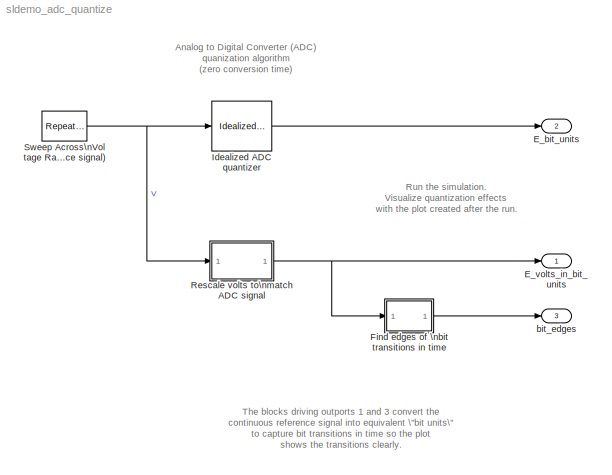
MODEL sldemo_adc_quantize
KIND model
CONFIG InitFcn = \n
CONFIG StopFcn = plot(yout.signals(1).values,double(yout.signals(2).values),'bo-'), grid, hold on, plot([0,4096],[0,4096],'g'), hold off\ntitle(sprintf('Idealized A/D converter quantization algorithm \\n (Zoom in close with the mouse to see behavior details)'))\nzoom on
BLOCK [Outport] E_bit_units
  BusOutputAsStruct = off
  IconDisplay = Port number
  Port = 2
BLOCK [Outport] E_volts_in_bit_units
  BusOutputAsStruct = off
  IconDisplay = Port number
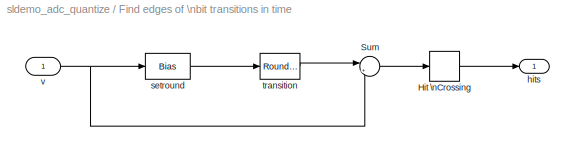
BLOCK [SubSystem] Find edges of \nbit transitions in time
  MinAlgLoopOccurrences = off
  Ports = [1, 1]
  PropExecContextAcrossSSBoundary = on
  RTWSystemCode = Auto
  TreatAsAtomicUnit = off
BLOCK [HitCross] Find edges of \nbit transitions in time/Hit \nCrossing
  HitCrossingDirection = either
  Ports = [1, 1]
BLOCK [Sum] Find edges of \nbit transitions in time/Sum
  IconShape = round
  InputSameDT = off
  Inputs = |+-
  OutDataTypeMode = Inherit via internal rule
  Ports = [2, 1]
  SaturateOnIntegerOverflow = off
BLOCK [Outport] Find edges of \nbit transitions in time/hits
  BusOutputAsStruct = off
  IconDisplay = Port number
BLOCK [Bias] Find edges of \nbit transitions in time/setround
  Bias = 0.5
  SaturateOnIntegerOverflow = off
BLOCK [Rounding] Find edges of \nbit transitions in time/transition
BLOCK [Inport] Find edges of \nbit transitions in time/v
  IconDisplay = Port number
  LatchInput = off
  Port = 1
BLOCK [Reference] Idealized ADC quantizer  REF=simulink_extras/Additional\nDiscrete/Idealized ADC quantizer
  AttributesFormatString = (settings: %<NumberOfConverterBits>-bit converter\\nVmin: %<Vmin>, Vmax: %<Vmax>)
  NumberOfConverterBits = 12
  OutputDataType = int16
  OutputNegativeValues = off
  Ports = [1, 1]
  ShowPortLabels = on
  SourceBlock = simulink_extras/Additional\nDiscrete/Idealized ADC quantizer
  SourceType = IdealADC
  Vmax = 5
  Vmin = 0
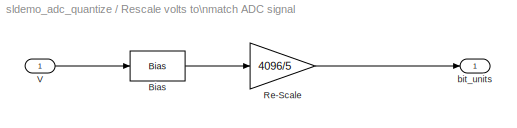
BLOCK [SubSystem] Rescale volts to\nmatch ADC signal
  MinAlgLoopOccurrences = off
  Ports = [1, 1]
  PropExecContextAcrossSSBoundary = on
  RTWSystemCode = Auto
  TreatAsAtomicUnit = off
BLOCK [Bias] Rescale volts to\nmatch ADC signal/Bias
  SaturateOnIntegerOverflow = off
BLOCK [Gain] Rescale volts to\nmatch ADC signal/Re-Scale
  Gain = 4096/5
  OutDataTypeMode = Inherit via internal rule
  ParameterDataTypeMode = Inherit via internal rule
  SaturateOnIntegerOverflow = off
BLOCK [Inport] Rescale volts to\nmatch ADC signal/V
  IconDisplay = Port number
  LatchInput = off
  Port = 1
BLOCK [Outport] Rescale volts to\nmatch ADC signal/bit_units
  BusOutputAsStruct = off
  IconDisplay = Port number
BLOCK [Reference] Sweep Across\nVoltage Range\n(Reference signal)  REF=simulink/Sources/Repeating\nSequence
  Ports = [0, 1]
  ShowPortLabels = on
  SourceBlock = simulink/Sources/Repeating\nSequence
  SourceType = Repeating table
  rep_seq_t = [0 7000]
  rep_seq_y = [-0.25, 7]
BLOCK [Outport] bit_edges
  BusOutputAsStruct = off
  IconDisplay = Port number
  Port = 3
ANNOTATION (root): Analog to Digital Converter (ADC)\nquanization algorithm\n(zero conversion time)
ANNOTATION (root): Run the simulation.\nVisualize quantization effects \nwith the plot created after the run.
ANNOTATION (root): The blocks driving outports 1 and 3 convert the \ncontinuous reference signal into equivalent \"bit units\" \nto capture bit transitions in time so the plot \nshows the transitions clearly.
LINE Find edges of \nbit transitions in time/Hit \nCrossing:1 -> Find edges of \nbit transitions in time/hits:1
LINE Find edges of \nbit transitions in time/Sum:1 -> Find edges of \nbit transitions in time/Hit \nCrossing:1
LINE Find edges of \nbit transitions in time/setround:1 -> Find edges of \nbit transitions in time/transition:1
LINE Find edges of \nbit transitions in time/transition:1 -> Find edges of \nbit transitions in time/Sum:1
NET Find edges of \nbit transitions in time/v:1 -> Find edges of \nbit transitions in time/Sum:2, Find edges of \nbit transitions in time/setround:1
LINE Find edges of \nbit transitions in time:1 -> bit_edges:1
LINE Idealized ADC quantizer:1 -> E_bit_units:1
LINE Rescale volts to\nmatch ADC signal/Bias:1 -> Rescale volts to\nmatch ADC signal/Re-Scale:1
LINE Rescale volts to\nmatch ADC signal/Re-Scale:1 -> Rescale volts to\nmatch ADC signal/bit_units:1
LINE Rescale volts to\nmatch ADC signal/V:1 -> Rescale volts to\nmatch ADC signal/Bias:1
NET Rescale volts to\nmatch ADC signal:1 -> E_volts_in_bit_units:1, Find edges of \nbit transitions in time:1
NET Sweep Across\nVoltage Range\n(Reference signal):1 -> Idealized ADC quantizer:1, Rescale volts to\nmatch ADC signal:1
note: NET lines group one-source signal fan-out (src -> all destinations, sorted); 1:1 wires keep LINE
